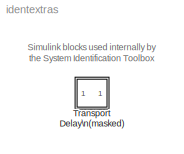
MODEL identextras
KIND library
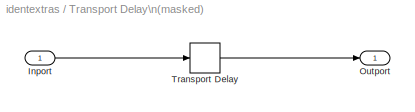
BLOCK [SubSystem] Transport Delay\n(masked)
  MaskCallbackString = ||
  MaskDescription = Transport Delay, with direct feedthrough when Delay Time is equal to zero.
  MaskDisplay = block_icon('Transport Delay')
  MaskEnableString = on,on,on
  MaskHelp = See Transport Delay for more information.
  MaskIconFrame = off
  MaskIconOpaque = on
  MaskIconRotate = none
  MaskIconUnits = normalized
  MaskInitialization = df = get_param(bdroot,'dirty');\niddfthru(gcb, Td, u0, bufsize);\nset_param(bdroot,'dirty',df)
  MaskPromptString = Delay Time|Initial Input|Initial Buffer Size
  MaskSelfModifiable = on
  MaskStyleString = edit,edit,edit
  MaskToolTipString = on,on,on
  MaskTunableValueString = on,on,on
  MaskType = Transport Delay (masked)
  MaskValueString = 1|0|1024
  MaskVarAliasString = ,,
  MaskVariables = Td=@1;u0=@2;bufsize=@3;
  MaskVisibilityString = on,on,on
  Ports = [1, 1]
  TreatAsAtomicUnit = off
BLOCK [Inport] Transport Delay\n(masked)/Inport
BLOCK [Outport] Transport Delay\n(masked)/Outport
BLOCK [TransportDelay] Transport Delay\n(masked)/Transport Delay
ANNOTATION (root): Simulink blocks used internally by\nthe System Identification Toolbox
LINE Transport Delay\n(masked)/Inport:1 -> Transport Delay\n(masked)/Transport Delay:1
LINE Transport Delay\n(masked)/Transport Delay:1 -> Transport Delay\n(masked)/Outport:1
